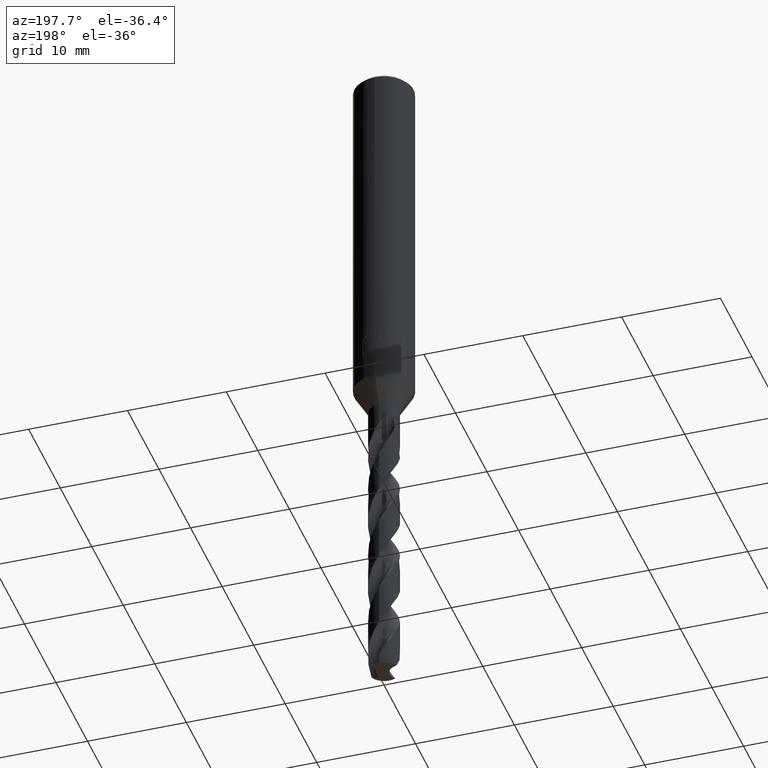
[diagram: clean part render]
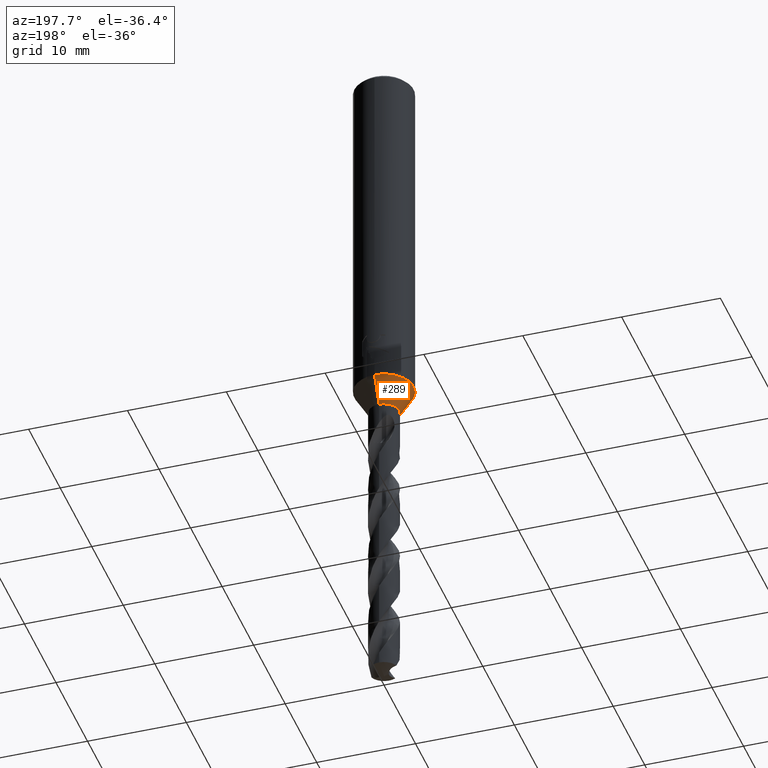
[diagram: same view with one face highlighted and labeled with its STEP entity id]
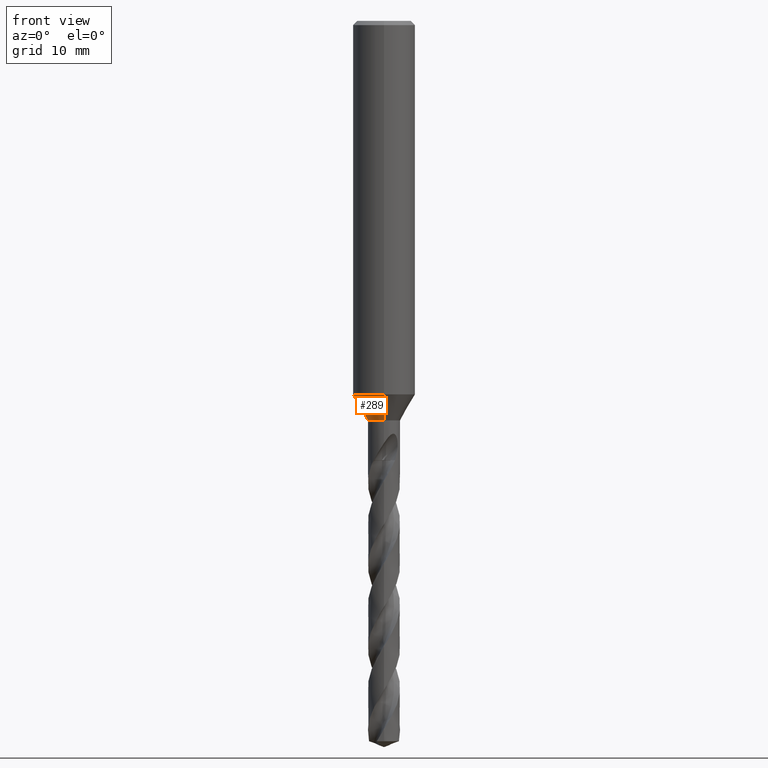
[diagram: same view with one face highlighted and labeled with its STEP entity id]
A machine part, auxiliary view. The second image highlights one B-rep face of the part: STEP entity #289.
A second angle (front view) of the same face is appended — the face is thin or edge-on in the first view.
In plain terms, the highlighted conical surface has half-angle 30 deg.
Its self-contained STEP definition (entity closure, byte-faithful):
#289=ADVANCED_FACE('',(#820),#821,.T.);
#307=VERTEX_POINT('',#841);
#387=EDGE_CURVE('',#737,#397,#928,.T.);
#397=VERTEX_POINT('',#941);
#531=VERTEX_POINT('',#1089);
#551=EDGE_CURVE('',#397,#531,#1111,.T.);
#599=EDGE_CURVE('',#531,#307,#1162,.T.);
#731=EDGE_CURVE('',#737,#307,#1302,.T.);
#737=VERTEX_POINT('',#1310);
#820=FACE_OUTER_BOUND('',#1391,.T.);
#821=CONICAL_SURFACE('',#1392,2.275,0.523598775598299);
#841=CARTESIAN_POINT('',(0.0,1.55,-38.5114736709749));
#928=LINE('',#2197,#2198);
#941=CARTESIAN_POINT('',(3.67381906146713E-016,-3.0,-36.0));
#1089=CARTESIAN_POINT('',(0.0,3.0,-36.0));
#1111=CIRCLE('',#4966,3.0);
#1162=LINE('',#5549,#5550);
#1302=CIRCLE('',#6553,1.55);
#1310=CARTESIAN_POINT('',(1.89813984842468E-016,-1.55,-38.5114736709749));
#1391=EDGE_LOOP('',(#7262,#7263,#7264,#7265));
#1392=AXIS2_PLACEMENT_3D('',#7266,#7267,#7268);
#2197=CARTESIAN_POINT('',(2.78597945494591E-016,-2.275,-37.2557368354874));
#2198=VECTOR('',#7401,1.0);
#4966=AXIS2_PLACEMENT_3D('',#7610,#7611,#7612);
#5549=CARTESIAN_POINT('',(-2.78597945494591E-016,2.275,-37.2557368354874));
#5550=VECTOR('',#7645,1.0);
#6553=AXIS2_PLACEMENT_3D('',#7748,#7749,#7750);
#7262=ORIENTED_EDGE('',*,*,#599,.T.);
#7263=ORIENTED_EDGE('',*,*,#731,.F.);
#7264=ORIENTED_EDGE('',*,*,#387,.T.);
#7265=ORIENTED_EDGE('',*,*,#551,.T.);
#7266=CARTESIAN_POINT('',(0.0,0.0,-37.2557368354874));
#7267=DIRECTION('',(-0.0,-0.0,1.0));
#7268=DIRECTION('',(0.0,1.0,0.0));
#7401=DIRECTION('',(6.12303176911189E-017,-0.5,0.866025403784439));
#7610=CARTESIAN_POINT('',(0.0,0.0,-36.0));
#7611=DIRECTION('',(0.0,0.0,-1.0));
#7612=DIRECTION('',(0.0,1.0,0.0));
#7645=DIRECTION('',(6.12303176911189E-017,-0.5,-0.866025403784439));
#7748=CARTESIAN_POINT('',(0.0,0.0,-38.5114736709749));
#7749=DIRECTION('',(0.0,0.0,-1.0));
#7750=DIRECTION('',(0.0,1.0,0.0));